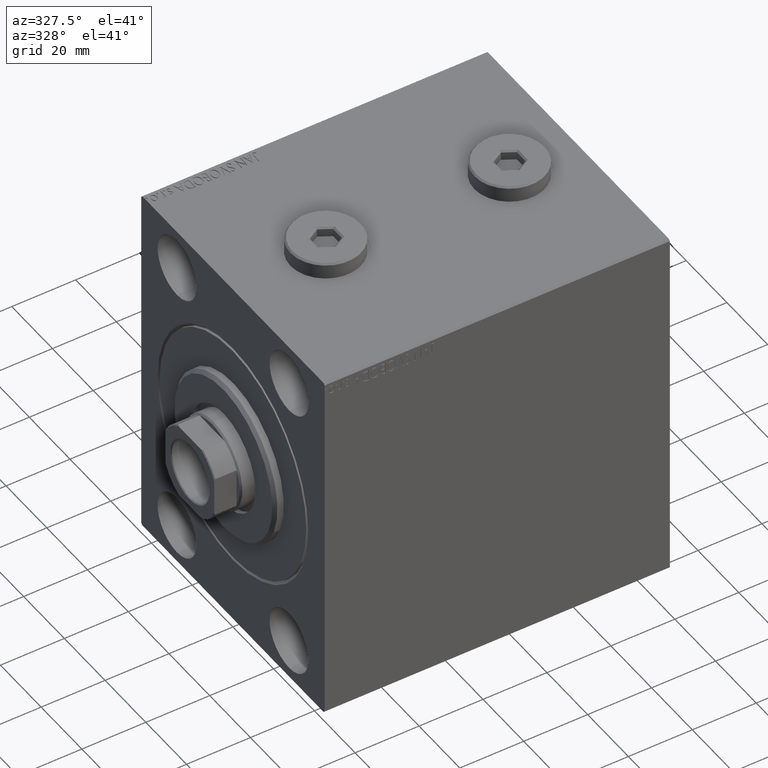
[diagram: clean part render]
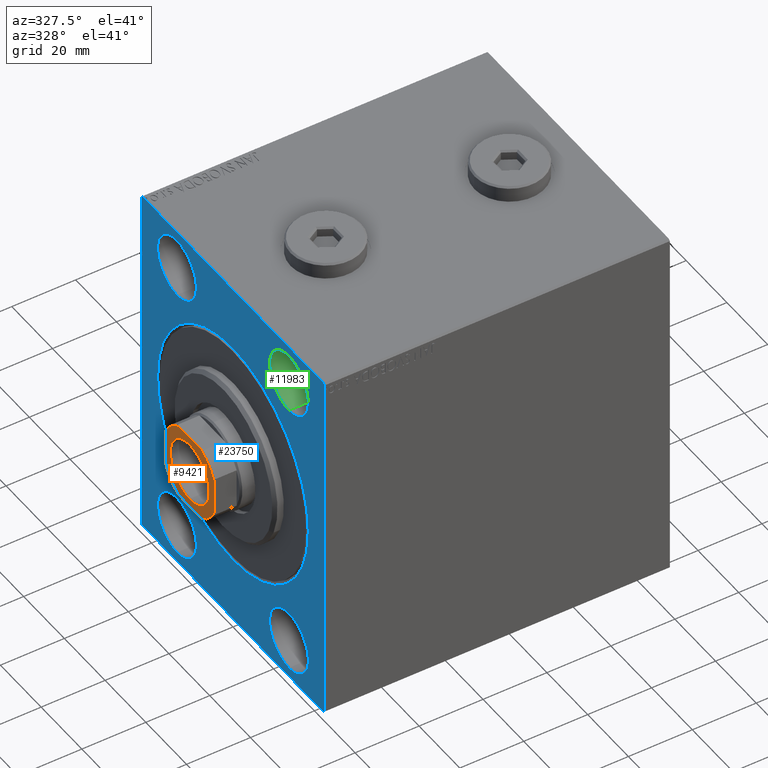
[diagram: same view with three faces highlighted in distinct colors, each labeled with its STEP entity id]
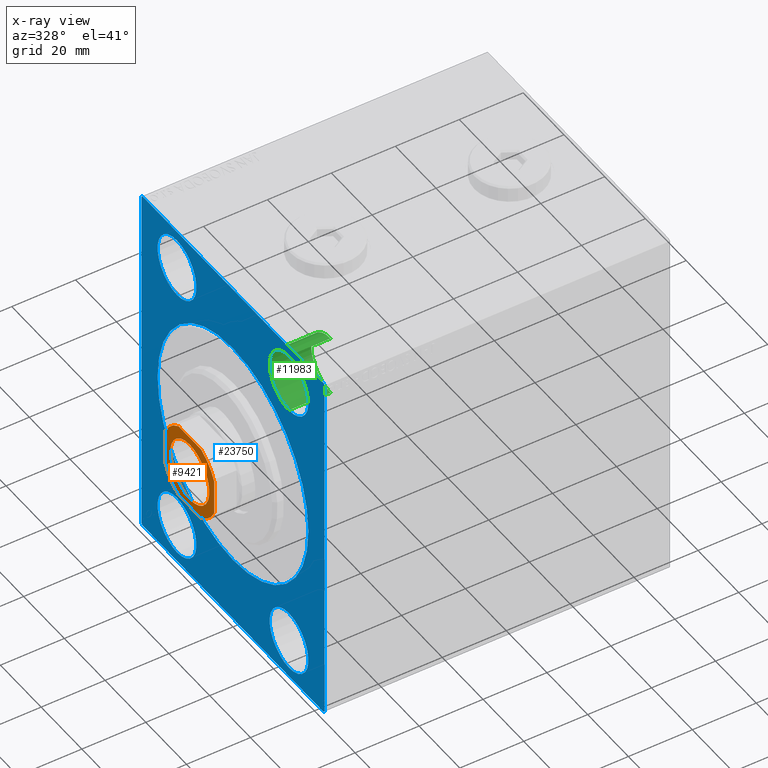
[diagram: x-ray of the same camera — body ghosted, the three highlighted faces saturated]
A machine part, auxiliary view with three faces highlighted in distinct colors.
The next image is the same camera in x-ray (body ghosted, the three faces saturated) — at least one of them is partly hidden behind the body in this view.
Their STEP definitions:

[orange] entity #9421 — the highlighted planar face has unit normal (-1, 0, 0).
#94 = AXIS2_PLACEMENT_3D ( 'NONE', #31897, #41741, #269 ) ;
#269 = DIRECTION ( 'NONE',  ( 1.000000000000000000, 0.000000000000000000, 0.000000000000000000 ) ) ;
#897 = CARTESIAN_POINT ( 'NONE',  ( -12.00000000000000355, 11.99999999999999645, 104.0000000000000142 ) ) ;
#1012 = CARTESIAN_POINT ( 'NONE',  ( 0.000000000000000000, 0.000000000000000000, 104.0000000000000142 ) ) ;
#1141 = CIRCLE ( 'NONE', #25288, 13.20000000000000107 ) ;
#2253 = AXIS2_PLACEMENT_3D ( 'NONE', #41061, #9237, #44732 ) ;
#2935 = ORIENTED_EDGE ( 'NONE', *, *, #11114, .T. ) ;
#3690 = CARTESIAN_POINT ( 'NONE',  ( -5.499090833947067658, 11.99999999999999645, 104.0000000000000142 ) ) ;
#3837 = VERTEX_POINT ( 'NONE', #28163 ) ;
#4565 = DIRECTION ( 'NONE',  ( -1.000000000000000000, -0.000000000000000000, -0.000000000000000000 ) ) ;
#5979 = CARTESIAN_POINT ( 'NONE',  ( 0.000000000000000000, 0.000000000000000000, 104.0000000000000142 ) ) ;
#6178 = VERTEX_POINT ( 'NONE', #18105 ) ;
#6686 = EDGE_CURVE ( 'NONE', #29121, #16539, #41146, .T. ) ;
#8157 = VECTOR ( 'NONE', #9533, 1000.000000000000000 ) ;
#8690 = AXIS2_PLACEMENT_3D ( 'NONE', #5979, #16298, #19973 ) ;
#9237 = DIRECTION ( 'NONE',  ( 0.000000000000000000, -0.000000000000000000, -1.000000000000000000 ) ) ;
#9417 = ORIENTED_EDGE ( 'NONE', *, *, #16898, .T. ) ;
#9421 = ADVANCED_FACE ( 'NONE', ( #26001, #43182 ), #17971, .T. ) ;
#9467 = LINE ( 'NONE', #20255, #28842 ) ;
#9533 = DIRECTION ( 'NONE',  ( 2.168404344971008868E-16, -1.000000000000000000, 0.000000000000000000 ) ) ;
#9720 = AXIS2_PLACEMENT_3D ( 'NONE', #1012, #42951, #14526 ) ;
#10424 = CARTESIAN_POINT ( 'NONE',  ( -12.00000000000000355, 11.99999999999999645, 104.0000000000000142 ) ) ;
#10523 = LINE ( 'NONE', #897, #16440 ) ;
#10861 = CIRCLE ( 'NONE', #8690, 13.20000000000002238 ) ;
#11114 = EDGE_CURVE ( 'NONE', #16539, #24364, #14172, .T. ) ;
#12832 = VERTEX_POINT ( 'NONE', #3690 ) ;
#13011 = VECTOR ( 'NONE', #21259, 1000.000000000000000 ) ;
#13998 = DIRECTION ( 'NONE',  ( 1.000000000000000000, 0.000000000000000000, 0.000000000000000000 ) ) ;
#14149 = CARTESIAN_POINT ( 'NONE',  ( 0.000000000000000000, 0.000000000000000000, 104.0000000000000142 ) ) ;
#14172 = CIRCLE ( 'NONE', #29539, 13.20000000000002238 ) ;
#14374 = AXIS2_PLACEMENT_3D ( 'NONE', #14607, #14839, #28365 ) ;
#14383 = EDGE_CURVE ( 'NONE', #3837, #12832, #10523, .T. ) ;
#14526 = DIRECTION ( 'NONE',  ( 1.000000000000000000, 0.000000000000000000, 0.000000000000000000 ) ) ;
#14607 = CARTESIAN_POINT ( 'NONE',  ( 0.000000000000000000, 0.000000000000000000, 104.0000000000000142 ) ) ;
#14839 = DIRECTION ( 'NONE',  ( -0.000000000000000000, 0.000000000000000000, 1.000000000000000000 ) ) ;
#15336 = VERTEX_POINT ( 'NONE', #21368 ) ;
#16298 = DIRECTION ( 'NONE',  ( -0.000000000000000000, 0.000000000000000000, 1.000000000000000000 ) ) ;
#16440 = VECTOR ( 'NONE', #4565, 1000.000000000000000 ) ;
#16539 = VERTEX_POINT ( 'NONE', #22402 ) ;
#16898 = EDGE_CURVE ( 'NONE', #28610, #15336, #9467, .T. ) ;
#17151 = EDGE_CURVE ( 'NONE', #19679, #28610, #1141, .T. ) ;
#17971 = PLANE ( 'NONE',  #9720 ) ;
#18105 = CARTESIAN_POINT ( 'NONE',  ( -9.550000000000002487, 1.169537693185722558E-15, 104.0000000000000142 ) ) ;
#19408 = ORIENTED_EDGE ( 'NONE', *, *, #27667, .T. ) ;
#19679 = VERTEX_POINT ( 'NONE', #21278 ) ;
#19973 = DIRECTION ( 'NONE',  ( 1.000000000000000000, 0.000000000000000000, 0.000000000000000000 ) ) ;
#20255 = CARTESIAN_POINT ( 'NONE',  ( 11.99999999999999645, 11.99999999999999645, 104.0000000000000142 ) ) ;
#21035 = DIRECTION ( 'NONE',  ( -0.000000000000000000, 0.000000000000000000, 1.000000000000000000 ) ) ;
#21259 = DIRECTION ( 'NONE',  ( 1.000000000000000000, 0.000000000000000000, 0.000000000000000000 ) ) ;
#21278 = CARTESIAN_POINT ( 'NONE',  ( 5.499090833947004597, -12.00000000000000355, 104.0000000000000142 ) ) ;
#21368 = CARTESIAN_POINT ( 'NONE',  ( 11.99999999999999645, 5.499090833947010815, 104.0000000000000142 ) ) ;
#22161 = ORIENTED_EDGE ( 'NONE', *, *, #42635, .T. ) ;
#22402 = CARTESIAN_POINT ( 'NONE',  ( -12.00000000000000000, -5.499090833947057888, 104.0000000000000142 ) ) ;
#23265 = ORIENTED_EDGE ( 'NONE', *, *, #39910, .T. ) ;
#23546 = CIRCLE ( 'NONE', #94, 9.550000000000002487 ) ;
#23795 = EDGE_CURVE ( 'NONE', #15336, #3837, #36351, .T. ) ;
#24241 = DIRECTION ( 'NONE',  ( 1.000000000000000000, 0.000000000000000000, 0.000000000000000000 ) ) ;
#24364 = VERTEX_POINT ( 'NONE', #31922 ) ;
#25288 = AXIS2_PLACEMENT_3D ( 'NONE', #14149, #21035, #24241 ) ;
#26001 = FACE_BOUND ( 'NONE', #29059, .T. ) ;
#27145 = CIRCLE ( 'NONE', #2253, 9.550000000000002487 ) ;
#27649 = VERTEX_POINT ( 'NONE', #34777 ) ;
#27667 = EDGE_CURVE ( 'NONE', #24364, #19679, #31102, .T. ) ;
#27752 = DIRECTION ( 'NONE',  ( -0.000000000000000000, 0.000000000000000000, 1.000000000000000000 ) ) ;
#27792 = ORIENTED_EDGE ( 'NONE', *, *, #23795, .T. ) ;
#28163 = CARTESIAN_POINT ( 'NONE',  ( 5.499090833947013479, 11.99999999999999645, 104.0000000000000142 ) ) ;
#28365 = DIRECTION ( 'NONE',  ( 1.000000000000000000, 0.000000000000000000, 0.000000000000000000 ) ) ;
#28610 = VERTEX_POINT ( 'NONE', #34607 ) ;
#28842 = VECTOR ( 'NONE', #34219, 1000.000000000000000 ) ;
#29059 = EDGE_LOOP ( 'NONE', ( #23265, #22161 ) ) ;
#29121 = VERTEX_POINT ( 'NONE', #43354 ) ;
#29539 = AXIS2_PLACEMENT_3D ( 'NONE', #30526, #27752, #13998 ) ;
#29969 = ORIENTED_EDGE ( 'NONE', *, *, #14383, .T. ) ;
#30085 = EDGE_CURVE ( 'NONE', #12832, #29121, #10861, .T. ) ;
#30526 = CARTESIAN_POINT ( 'NONE',  ( 0.000000000000000000, 0.000000000000000000, 104.0000000000000142 ) ) ;
#31102 = LINE ( 'NONE', #38884, #13011 ) ;
#31897 = CARTESIAN_POINT ( 'NONE',  ( 0.000000000000000000, 0.000000000000000000, 104.0000000000000142 ) ) ;
#31922 = CARTESIAN_POINT ( 'NONE',  ( -5.499090833947052559, -12.00000000000000355, 104.0000000000000142 ) ) ;
#34023 = ORIENTED_EDGE ( 'NONE', *, *, #17151, .T. ) ;
#34219 = DIRECTION ( 'NONE',  ( -2.168404344971008868E-16, 1.000000000000000000, -0.000000000000000000 ) ) ;
#34607 = CARTESIAN_POINT ( 'NONE',  ( 12.00000000000000000, -5.499090833947013479, 104.0000000000000142 ) ) ;
#34777 = CARTESIAN_POINT ( 'NONE',  ( 9.550000000000002487, 0.000000000000000000, 104.0000000000000142 ) ) ;
#36351 = CIRCLE ( 'NONE', #14374, 13.19999999999999929 ) ;
#36389 = EDGE_LOOP ( 'NONE', ( #9417, #27792, #29969, #37979, #44350, #2935, #19408, #34023 ) ) ;
#37979 = ORIENTED_EDGE ( 'NONE', *, *, #30085, .T. ) ;
#38884 = CARTESIAN_POINT ( 'NONE',  ( -11.99999999999999822, -12.00000000000000355, 104.0000000000000142 ) ) ;
#39910 = EDGE_CURVE ( 'NONE', #27649, #6178, #27145, .T. ) ;
#41061 = CARTESIAN_POINT ( 'NONE',  ( 0.000000000000000000, 0.000000000000000000, 104.0000000000000142 ) ) ;
#41146 = LINE ( 'NONE', #10424, #8157 ) ;
#41741 = DIRECTION ( 'NONE',  ( 0.000000000000000000, -0.000000000000000000, -1.000000000000000000 ) ) ;
#42635 = EDGE_CURVE ( 'NONE', #6178, #27649, #23546, .T. ) ;
#42951 = DIRECTION ( 'NONE',  ( -0.000000000000000000, 0.000000000000000000, 1.000000000000000000 ) ) ;
#43182 = FACE_OUTER_BOUND ( 'NONE', #36389, .T. ) ;
#43354 = CARTESIAN_POINT ( 'NONE',  ( -12.00000000000000178, 5.499090833947057000, 104.0000000000000142 ) ) ;
#44350 = ORIENTED_EDGE ( 'NONE', *, *, #6686, .T. ) ;
#44732 = DIRECTION ( 'NONE',  ( 1.000000000000000000, 0.000000000000000000, 0.000000000000000000 ) ) ;

[blue] entity #23750 — the highlighted planar face has unit normal (1, 0, 0).
#194 = CARTESIAN_POINT ( 'NONE',  ( 0.000000000000000000, -27.49999999999998934, 45.00000000000000711 ) ) ;
#598 = VECTOR ( 'NONE', #39281, 1000.000000000000000 ) ;
#743 = DIRECTION ( 'NONE',  ( 0.000000000000000000, 0.000000000000000000, 1.000000000000000000 ) ) ;
#1221 = LINE ( 'NONE', #35832, #2279 ) ;
#2224 = ORIENTED_EDGE ( 'NONE', *, *, #39327, .T. ) ;
#2279 = VECTOR ( 'NONE', #42939, 1000.000000000000114 ) ;
#2535 = CARTESIAN_POINT ( 'NONE',  ( 0.000000000000000000, 45.00000000000001421, -57.00000000000003553 ) ) ;
#2596 = CARTESIAN_POINT ( 'NONE',  ( 0.000000000000000000, -27.50000000000000000, -44.99999999999998579 ) ) ;
#2761 = VERTEX_POINT ( 'NONE', #29869 ) ;
#3656 = VECTOR ( 'NONE', #5740, 1000.000000000000114 ) ;
#4080 = EDGE_LOOP ( 'NONE', ( #8265, #19616 ) ) ;
#4086 = DIRECTION ( 'NONE',  ( -1.000000000000000000, 0.000000000000000000, 0.000000000000000000 ) ) ;
#4279 = CARTESIAN_POINT ( 'NONE',  ( 0.000000000000000000, 44.50000000000002842, 57.50000000000000711 ) ) ;
#4331 = CARTESIAN_POINT ( 'NONE',  ( 0.000000000000000000, 27.49999999999998934, -44.99999999999998579 ) ) ;
#4913 = DIRECTION ( 'NONE',  ( -1.000000000000000000, 0.000000000000000000, 0.000000000000000000 ) ) ;
#4978 = VERTEX_POINT ( 'NONE', #18062 ) ;
#5092 = CIRCLE ( 'NONE', #21952, 9.500000000000001776 ) ;
#5448 = EDGE_LOOP ( 'NONE', ( #5675, #6869, #24359, #16803, #29746, #44927, #16401, #2224 ) ) ;
#5553 = CARTESIAN_POINT ( 'NONE',  ( 0.000000000000000000, -27.49999999999998934, 45.00000000000000711 ) ) ;
#5642 = DIRECTION ( 'NONE',  ( 0.000000000000000000, 0.000000000000000000, 1.000000000000000000 ) ) ;
#5675 = ORIENTED_EDGE ( 'NONE', *, *, #42098, .F. ) ;
#5740 = DIRECTION ( 'NONE',  ( -0.000000000000000000, -0.7071067811865474617, 0.7071067811865474617 ) ) ;
#5799 = EDGE_CURVE ( 'NONE', #11519, #13142, #6689, .T. ) ;
#5995 = DIRECTION ( 'NONE',  ( 0.000000000000000000, 0.000000000000000000, 1.000000000000000000 ) ) ;
#6441 = AXIS2_PLACEMENT_3D ( 'NONE', #5553, #36723, #19761 ) ;
#6689 = CIRCLE ( 'NONE', #22117, 9.500000000000001776 ) ;
#6869 = ORIENTED_EDGE ( 'NONE', *, *, #41524, .T. ) ;
#6925 = EDGE_CURVE ( 'NONE', #4978, #11811, #25041, .T. ) ;
#7000 = CARTESIAN_POINT ( 'NONE',  ( 0.000000000000000000, -44.50000000000002842, -57.50000000000000711 ) ) ;
#7667 = AXIS2_PLACEMENT_3D ( 'NONE', #43500, #8419, #8884 ) ;
#7725 = DIRECTION ( 'NONE',  ( 1.000000000000000000, 0.000000000000000000, 0.000000000000000000 ) ) ;
#8265 = ORIENTED_EDGE ( 'NONE', *, *, #14470, .F. ) ;
#8419 = DIRECTION ( 'NONE',  ( 1.000000000000000000, 0.000000000000000000, 0.000000000000000000 ) ) ;
#8493 = EDGE_CURVE ( 'NONE', #11811, #4978, #28741, .T. ) ;
#8884 = DIRECTION ( 'NONE',  ( 0.000000000000000000, 0.000000000000000000, -1.000000000000000000 ) ) ;
#9050 = AXIS2_PLACEMENT_3D ( 'NONE', #4331, #11439, #15109 ) ;
#9349 = DIRECTION ( 'NONE',  ( 0.000000000000000000, 0.000000000000000000, -1.000000000000000000 ) ) ;
#9504 = DIRECTION ( 'NONE',  ( -1.000000000000000000, 0.000000000000000000, 0.000000000000000000 ) ) ;
#9563 = LINE ( 'NONE', #26568, #14001 ) ;
#9722 = CARTESIAN_POINT ( 'NONE',  ( 0.000000000000000000, 27.49999999999998934, -54.49999999999998579 ) ) ;
#10525 = CARTESIAN_POINT ( 'NONE',  ( 0.000000000000000000, -44.50000000000002842, -57.50000000000000711 ) ) ;
#11124 = ORIENTED_EDGE ( 'NONE', *, *, #5799, .F. ) ;
#11313 = VERTEX_POINT ( 'NONE', #23770 ) ;
#11439 = DIRECTION ( 'NONE',  ( -1.000000000000000000, 0.000000000000000000, 0.000000000000000000 ) ) ;
#11519 = VERTEX_POINT ( 'NONE', #14345 ) ;
#11626 = FACE_BOUND ( 'NONE', #31327, .T. ) ;
#11668 = VERTEX_POINT ( 'NONE', #9722 ) ;
#11811 = VERTEX_POINT ( 'NONE', #34917 ) ;
#12400 = CIRCLE ( 'NONE', #24800, 37.00000000000003553 ) ;
#12488 = DIRECTION ( 'NONE',  ( 0.000000000000000000, 0.000000000000000000, 1.000000000000000000 ) ) ;
#12623 = LINE ( 'NONE', #7000, #3656 ) ;
#12977 = ORIENTED_EDGE ( 'NONE', *, *, #6925, .F. ) ;
#13142 = VERTEX_POINT ( 'NONE', #17680 ) ;
#13905 = LINE ( 'NONE', #20804, #598 ) ;
#14001 = VECTOR ( 'NONE', #9349, 1000.000000000000000 ) ;
#14333 = VERTEX_POINT ( 'NONE', #31608 ) ;
#14345 = CARTESIAN_POINT ( 'NONE',  ( 0.000000000000000000, -27.50000000000000000, -54.49999999999998579 ) ) ;
#14470 = EDGE_CURVE ( 'NONE', #19330, #11668, #31078, .T. ) ;
#15109 = DIRECTION ( 'NONE',  ( 0.000000000000000000, 0.000000000000000000, 1.000000000000000000 ) ) ;
#15992 = VERTEX_POINT ( 'NONE', #22965 ) ;
#15995 = CIRCLE ( 'NONE', #6441, 9.500000000000001776 ) ;
#16130 = VERTEX_POINT ( 'NONE', #10525 ) ;
#16401 = ORIENTED_EDGE ( 'NONE', *, *, #36822, .F. ) ;
#16511 = LINE ( 'NONE', #23403, #27207 ) ;
#16803 = ORIENTED_EDGE ( 'NONE', *, *, #42846, .T. ) ;
#16978 = CARTESIAN_POINT ( 'NONE',  ( 0.000000000000000000, 44.50000000000001421, -57.50000000000000711 ) ) ;
#17187 = CIRCLE ( 'NONE', #7667, 37.00000000000003553 ) ;
#17593 = FACE_BOUND ( 'NONE', #33420, .T. ) ;
#17680 = CARTESIAN_POINT ( 'NONE',  ( 0.000000000000000000, -27.50000000000000000, -35.49999999999998579 ) ) ;
#18062 = CARTESIAN_POINT ( 'NONE',  ( 0.000000000000000000, 27.50000000000001066, 54.50000000000000711 ) ) ;
#18288 = FACE_OUTER_BOUND ( 'NONE', #5448, .T. ) ;
#18300 = VERTEX_POINT ( 'NONE', #28888 ) ;
#18512 = VERTEX_POINT ( 'NONE', #22821 ) ;
#18594 = ORIENTED_EDGE ( 'NONE', *, *, #32969, .F. ) ;
#18909 = DIRECTION ( 'NONE',  ( 0.000000000000000000, 0.000000000000000000, 1.000000000000000000 ) ) ;
#19057 = EDGE_CURVE ( 'NONE', #13142, #11519, #30459, .T. ) ;
#19330 = VERTEX_POINT ( 'NONE', #37829 ) ;
#19616 = ORIENTED_EDGE ( 'NONE', *, *, #30965, .F. ) ;
#19761 = DIRECTION ( 'NONE',  ( 0.000000000000000000, 0.000000000000000000, 1.000000000000000000 ) ) ;
#19801 = EDGE_CURVE ( 'NONE', #2761, #23254, #17187, .T. ) ;
#20069 = EDGE_LOOP ( 'NONE', ( #34145, #11124 ) ) ;
#20262 = CARTESIAN_POINT ( 'NONE',  ( 0.000000000000000000, 4.531193156845210737E-15, -37.00000000000003553 ) ) ;
#20804 = CARTESIAN_POINT ( 'NONE',  ( 0.000000000000000000, 45.00000000000000000, 57.50000000000000711 ) ) ;
#21064 = DIRECTION ( 'NONE',  ( 0.000000000000000000, 0.000000000000000000, 1.000000000000000000 ) ) ;
#21106 = LINE ( 'NONE', #27972, #21725 ) ;
#21725 = VECTOR ( 'NONE', #24993, 1000.000000000000000 ) ;
#21952 = AXIS2_PLACEMENT_3D ( 'NONE', #194, #4086, #21064 ) ;
#22117 = AXIS2_PLACEMENT_3D ( 'NONE', #2596, #40874, #12488 ) ;
#22349 = CARTESIAN_POINT ( 'NONE',  ( 0.000000000000000000, 27.49999999999998934, -44.99999999999998579 ) ) ;
#22526 = CARTESIAN_POINT ( 'NONE',  ( 0.000000000000000000, -27.50000000000000000, -44.99999999999998579 ) ) ;
#22821 = CARTESIAN_POINT ( 'NONE',  ( 0.000000000000000000, -27.49999999999998934, 35.50000000000000711 ) ) ;
#22965 = CARTESIAN_POINT ( 'NONE',  ( 0.000000000000000000, -45.00000000000000000, 56.99999999999999289 ) ) ;
#23254 = VERTEX_POINT ( 'NONE', #20262 ) ;
#23331 = ORIENTED_EDGE ( 'NONE', *, *, #19801, .T. ) ;
#23403 = CARTESIAN_POINT ( 'NONE',  ( 0.000000000000000000, 44.50000000000002842, 57.50000000000000711 ) ) ;
#23750 = ADVANCED_FACE ( 'NONE', ( #11626, #42106, #39589, #17593, #32261, #18288 ), #39134, .F. ) ;
#23770 = CARTESIAN_POINT ( 'NONE',  ( 0.000000000000000000, -45.00000000000000000, -57.00000000000003553 ) ) ;
#24072 = EDGE_LOOP ( 'NONE', ( #29980, #18594 ) ) ;
#24359 = ORIENTED_EDGE ( 'NONE', *, *, #29630, .F. ) ;
#24677 = EDGE_CURVE ( 'NONE', #14333, #40503, #21106, .T. ) ;
#24800 = AXIS2_PLACEMENT_3D ( 'NONE', #31214, #30551, #38319 ) ;
#24993 = DIRECTION ( 'NONE',  ( 0.000000000000000000, -1.206764157201257045E-16, 1.000000000000000000 ) ) ;
#25041 = CIRCLE ( 'NONE', #33839, 9.500000000000001776 ) ;
#26422 = CARTESIAN_POINT ( 'NONE',  ( 0.000000000000000000, 27.50000000000001066, 45.00000000000000711 ) ) ;
#26568 = CARTESIAN_POINT ( 'NONE',  ( 0.000000000000000000, -45.00000000000000000, 57.49999999999999289 ) ) ;
#27207 = VECTOR ( 'NONE', #37378, 1000.000000000000114 ) ;
#27502 = DIRECTION ( 'NONE',  ( 0.000000000000000000, -0.7071067811865474617, -0.7071067811865474617 ) ) ;
#27746 = VERTEX_POINT ( 'NONE', #4279 ) ;
#27972 = CARTESIAN_POINT ( 'NONE',  ( 0.000000000000000000, 45.00000000000001421, -57.50000000000000711 ) ) ;
#28156 = VERTEX_POINT ( 'NONE', #29208 ) ;
#28410 = EDGE_CURVE ( 'NONE', #18300, #18512, #15995, .T. ) ;
#28741 = CIRCLE ( 'NONE', #34587, 9.500000000000001776 ) ;
#28888 = CARTESIAN_POINT ( 'NONE',  ( 0.000000000000000000, -27.49999999999998934, 54.50000000000000711 ) ) ;
#29208 = CARTESIAN_POINT ( 'NONE',  ( 0.000000000000000000, -44.49999999999997158, 57.49999999999999289 ) ) ;
#29630 = EDGE_CURVE ( 'NONE', #27746, #28156, #13905, .T. ) ;
#29746 = ORIENTED_EDGE ( 'NONE', *, *, #24677, .F. ) ;
#29869 = CARTESIAN_POINT ( 'NONE',  ( 0.000000000000000000, 0.000000000000000000, 37.00000000000003553 ) ) ;
#29980 = ORIENTED_EDGE ( 'NONE', *, *, #28410, .F. ) ;
#30124 = EDGE_CURVE ( 'NONE', #14333, #37257, #33735, .T. ) ;
#30459 = CIRCLE ( 'NONE', #44366, 9.500000000000001776 ) ;
#30551 = DIRECTION ( 'NONE',  ( 1.000000000000000000, 0.000000000000000000, 0.000000000000000000 ) ) ;
#30618 = CARTESIAN_POINT ( 'NONE',  ( 0.000000000000000000, -45.00000000000000000, -57.50000000000000711 ) ) ;
#30965 = EDGE_CURVE ( 'NONE', #11668, #19330, #45314, .T. ) ;
#31066 = LINE ( 'NONE', #30618, #42397 ) ;
#31078 = CIRCLE ( 'NONE', #9050, 9.500000000000001776 ) ;
#31214 = CARTESIAN_POINT ( 'NONE',  ( 0.000000000000000000, 0.000000000000000000, 0.000000000000000000 ) ) ;
#31327 = EDGE_LOOP ( 'NONE', ( #23331, #32029 ) ) ;
#31569 = DIRECTION ( 'NONE',  ( 0.000000000000000000, 0.000000000000000000, -1.000000000000000000 ) ) ;
#31608 = CARTESIAN_POINT ( 'NONE',  ( 0.000000000000000000, 45.00000000000001421, -57.00000000000003553 ) ) ;
#32029 = ORIENTED_EDGE ( 'NONE', *, *, #35167, .T. ) ;
#32261 = FACE_BOUND ( 'NONE', #20069, .T. ) ;
#32969 = EDGE_CURVE ( 'NONE', #18512, #18300, #5092, .T. ) ;
#33420 = EDGE_LOOP ( 'NONE', ( #12977, #44808 ) ) ;
#33735 = LINE ( 'NONE', #2535, #41614 ) ;
#33821 = CARTESIAN_POINT ( 'NONE',  ( 0.000000000000000000, 45.00000000000000000, 57.00000000000000711 ) ) ;
#33839 = AXIS2_PLACEMENT_3D ( 'NONE', #26422, #40390, #5995 ) ;
#34145 = ORIENTED_EDGE ( 'NONE', *, *, #19057, .F. ) ;
#34150 = AXIS2_PLACEMENT_3D ( 'NONE', #35476, #7725, #31569 ) ;
#34587 = AXIS2_PLACEMENT_3D ( 'NONE', #44358, #9504, #5642 ) ;
#34917 = CARTESIAN_POINT ( 'NONE',  ( 0.000000000000000000, 27.50000000000001066, 35.50000000000000711 ) ) ;
#35048 = AXIS2_PLACEMENT_3D ( 'NONE', #22349, #4913, #18909 ) ;
#35167 = EDGE_CURVE ( 'NONE', #23254, #2761, #12400, .T. ) ;
#35476 = CARTESIAN_POINT ( 'NONE',  ( 0.000000000000000000, 0.000000000000000000, 0.000000000000000000 ) ) ;
#35832 = CARTESIAN_POINT ( 'NONE',  ( 0.000000000000000000, -45.00000000000000000, 56.99999999999999289 ) ) ;
#36723 = DIRECTION ( 'NONE',  ( -1.000000000000000000, 0.000000000000000000, 0.000000000000000000 ) ) ;
#36822 = EDGE_CURVE ( 'NONE', #16130, #37257, #31066, .T. ) ;
#37257 = VERTEX_POINT ( 'NONE', #16978 ) ;
#37378 = DIRECTION ( 'NONE',  ( -0.000000000000000000, 0.7071067811865474617, -0.7071067811865474617 ) ) ;
#37829 = CARTESIAN_POINT ( 'NONE',  ( 0.000000000000000000, 27.49999999999998934, -35.49999999999998579 ) ) ;
#38319 = DIRECTION ( 'NONE',  ( 0.000000000000000000, 0.000000000000000000, -1.000000000000000000 ) ) ;
#39134 = PLANE ( 'NONE',  #34150 ) ;
#39281 = DIRECTION ( 'NONE',  ( 0.000000000000000000, -1.000000000000000000, -1.541976423090495387E-16 ) ) ;
#39327 = EDGE_CURVE ( 'NONE', #16130, #11313, #12623, .T. ) ;
#39475 = DIRECTION ( 'NONE',  ( -1.000000000000000000, 0.000000000000000000, 0.000000000000000000 ) ) ;
#39589 = FACE_BOUND ( 'NONE', #24072, .T. ) ;
#40390 = DIRECTION ( 'NONE',  ( -1.000000000000000000, 0.000000000000000000, 0.000000000000000000 ) ) ;
#40503 = VERTEX_POINT ( 'NONE', #33821 ) ;
#40874 = DIRECTION ( 'NONE',  ( -1.000000000000000000, 0.000000000000000000, 0.000000000000000000 ) ) ;
#41524 = EDGE_CURVE ( 'NONE', #15992, #28156, #1221, .T. ) ;
#41614 = VECTOR ( 'NONE', #27502, 1000.000000000000114 ) ;
#42098 = EDGE_CURVE ( 'NONE', #15992, #11313, #9563, .T. ) ;
#42106 = FACE_BOUND ( 'NONE', #4080, .T. ) ;
#42397 = VECTOR ( 'NONE', #45049, 1000.000000000000000 ) ;
#42846 = EDGE_CURVE ( 'NONE', #27746, #40503, #16511, .T. ) ;
#42939 = DIRECTION ( 'NONE',  ( -0.000000000000000000, 0.7071067811865474617, 0.7071067811865474617 ) ) ;
#43500 = CARTESIAN_POINT ( 'NONE',  ( 0.000000000000000000, 0.000000000000000000, 0.000000000000000000 ) ) ;
#44358 = CARTESIAN_POINT ( 'NONE',  ( 0.000000000000000000, 27.50000000000001066, 45.00000000000000711 ) ) ;
#44366 = AXIS2_PLACEMENT_3D ( 'NONE', #22526, #39475, #743 ) ;
#44808 = ORIENTED_EDGE ( 'NONE', *, *, #8493, .F. ) ;
#44927 = ORIENTED_EDGE ( 'NONE', *, *, #30124, .T. ) ;
#45049 = DIRECTION ( 'NONE',  ( 0.000000000000000000, 1.000000000000000000, 0.000000000000000000 ) ) ;
#45314 = CIRCLE ( 'NONE', #35048, 9.500000000000001776 ) ;

[green] entity #11983 — the highlighted cylindrical surface (edge-blend (fillet) strip) has radius 9.5 mm, axis along (-1, -0, -0).
#1908 = DIRECTION ( 'NONE',  ( -1.000000000000000000, -0.000000000000000000, -0.000000000000000000 ) ) ;
#4758 = ORIENTED_EDGE ( 'NONE', *, *, #40527, .F. ) ;
#5553 = CARTESIAN_POINT ( 'NONE',  ( 0.000000000000000000, -27.49999999999998934, 45.00000000000000711 ) ) ;
#6441 = AXIS2_PLACEMENT_3D ( 'NONE', #5553, #36723, #19761 ) ;
#6920 = CIRCLE ( 'NONE', #21580, 9.500000000000001776 ) ;
#11793 = VECTOR ( 'NONE', #30154, 1000.000000000000000 ) ;
#11983 = ADVANCED_FACE ( 'NONE', ( #26213 ), #40184, .F. ) ;
#14634 = EDGE_CURVE ( 'NONE', #31447, #41827, #6920, .T. ) ;
#15887 = DIRECTION ( 'NONE',  ( 0.000000000000000000, 0.000000000000000000, 1.000000000000000000 ) ) ;
#15995 = CIRCLE ( 'NONE', #6441, 9.500000000000001776 ) ;
#16900 = CARTESIAN_POINT ( 'NONE',  ( 13.00000000000000000, -27.49999999999998934, 45.00000000000000711 ) ) ;
#18300 = VERTEX_POINT ( 'NONE', #28888 ) ;
#18512 = VERTEX_POINT ( 'NONE', #22821 ) ;
#19351 = AXIS2_PLACEMENT_3D ( 'NONE', #33323, #1908, #15887 ) ;
#19761 = DIRECTION ( 'NONE',  ( 0.000000000000000000, 0.000000000000000000, 1.000000000000000000 ) ) ;
#21580 = AXIS2_PLACEMENT_3D ( 'NONE', #16900, #24009, #44860 ) ;
#21745 = ORIENTED_EDGE ( 'NONE', *, *, #28410, .T. ) ;
#22821 = CARTESIAN_POINT ( 'NONE',  ( 0.000000000000000000, -27.49999999999998934, 35.50000000000000711 ) ) ;
#24009 = DIRECTION ( 'NONE',  ( -1.000000000000000000, 0.000000000000000000, 0.000000000000000000 ) ) ;
#25612 = CARTESIAN_POINT ( 'NONE',  ( 13.00000000000000000, -27.49999999999998934, 54.50000000000000711 ) ) ;
#26213 = FACE_OUTER_BOUND ( 'NONE', #44668, .T. ) ;
#26970 = ORIENTED_EDGE ( 'NONE', *, *, #29978, .T. ) ;
#28410 = EDGE_CURVE ( 'NONE', #18300, #18512, #15995, .T. ) ;
#28888 = CARTESIAN_POINT ( 'NONE',  ( 0.000000000000000000, -27.49999999999998934, 54.50000000000000711 ) ) ;
#29839 = CARTESIAN_POINT ( 'NONE',  ( 13.00000000000000000, -27.49999999999998934, 54.50000000000000711 ) ) ;
#29978 = EDGE_CURVE ( 'NONE', #31447, #18300, #36716, .T. ) ;
#30154 = DIRECTION ( 'NONE',  ( -1.000000000000000000, -0.000000000000000000, -0.000000000000000000 ) ) ;
#31447 = VERTEX_POINT ( 'NONE', #25612 ) ;
#32590 = DIRECTION ( 'NONE',  ( -1.000000000000000000, -0.000000000000000000, -0.000000000000000000 ) ) ;
#33323 = CARTESIAN_POINT ( 'NONE',  ( 13.00000000000000000, -27.49999999999998934, 45.00000000000000711 ) ) ;
#33939 = CARTESIAN_POINT ( 'NONE',  ( 13.00000000000000000, -27.49999999999998934, 35.50000000000000711 ) ) ;
#34288 = ORIENTED_EDGE ( 'NONE', *, *, #14634, .F. ) ;
#36716 = LINE ( 'NONE', #29839, #39405 ) ;
#36723 = DIRECTION ( 'NONE',  ( -1.000000000000000000, 0.000000000000000000, 0.000000000000000000 ) ) ;
#39405 = VECTOR ( 'NONE', #32590, 1000.000000000000000 ) ;
#40184 = CYLINDRICAL_SURFACE ( 'NONE', #19351, 9.500000000000001776 ) ;
#40527 = EDGE_CURVE ( 'NONE', #41827, #18512, #44777, .T. ) ;
#41107 = CARTESIAN_POINT ( 'NONE',  ( 13.00000000000000000, -27.49999999999998934, 35.50000000000000711 ) ) ;
#41827 = VERTEX_POINT ( 'NONE', #33939 ) ;
#44668 = EDGE_LOOP ( 'NONE', ( #4758, #34288, #26970, #21745 ) ) ;
#44777 = LINE ( 'NONE', #41107, #11793 ) ;
#44860 = DIRECTION ( 'NONE',  ( 0.000000000000000000, 0.000000000000000000, 1.000000000000000000 ) ) ;